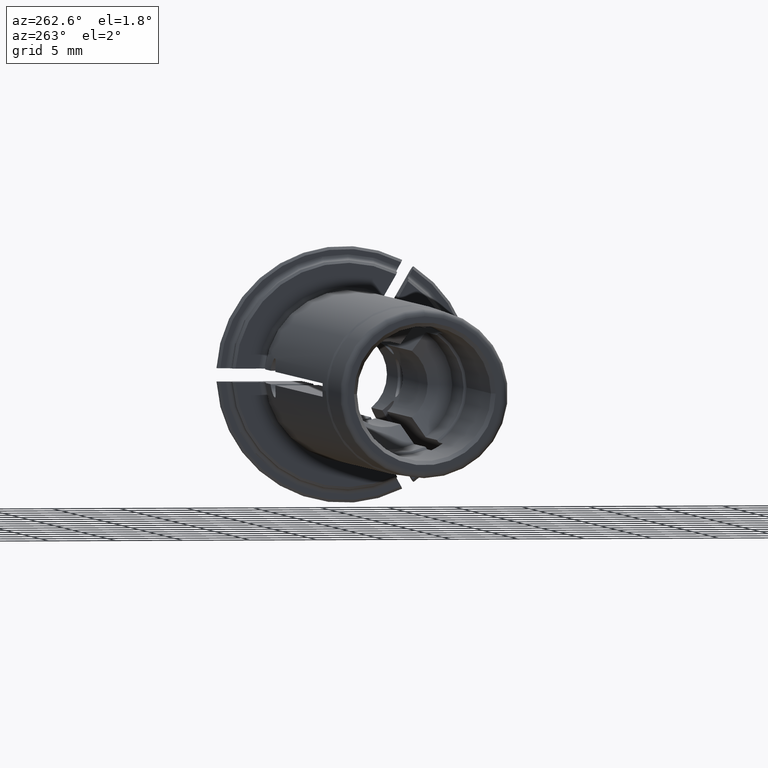
[diagram: clean part render]
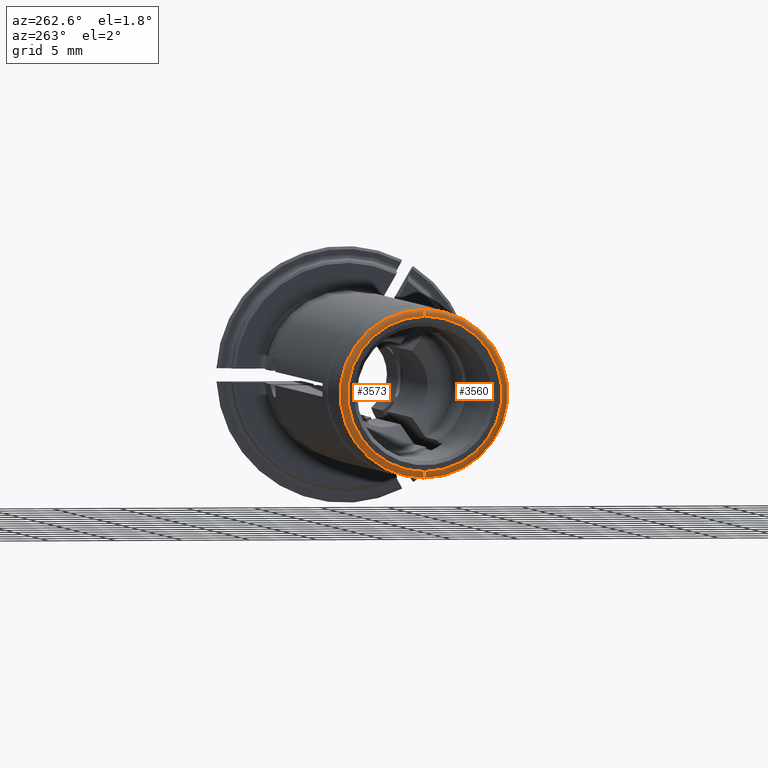
[diagram: same view with one multi-face feature highlighted, each face labeled with its STEP entity id]
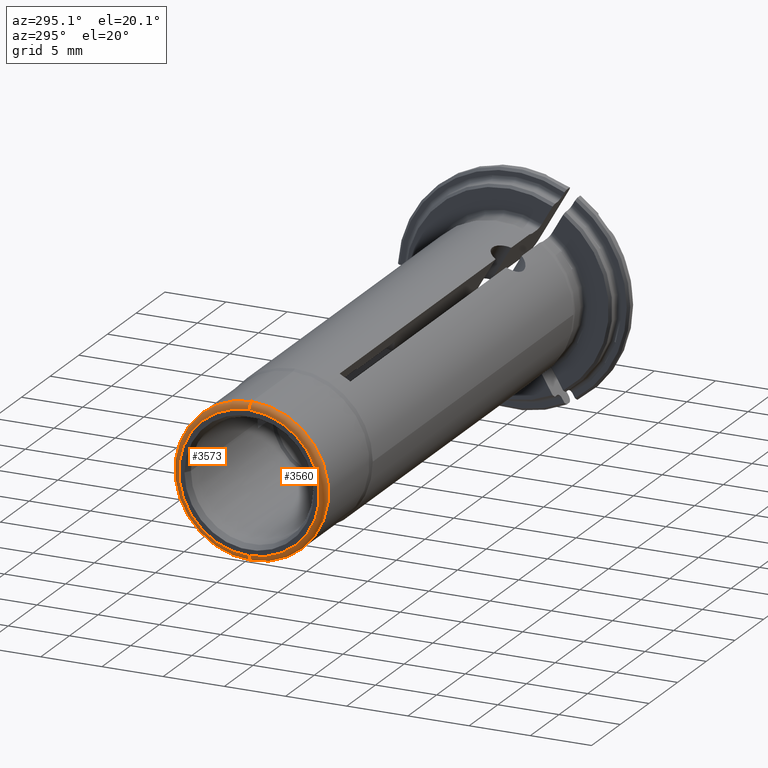
[diagram: same view with one multi-face feature highlighted, each face labeled with its STEP entity id]
A machine part, auxiliary view. The highlighted faces form ONE feature: a constant-radius fillet chain: 2 tangent blend faces with common blend radius 0.5 mm. The faces share edges in the B-rep.
A second angle (auxiliary view) of the same feature is appended — it is thin or edge-on in the first view.
Their STEP definitions:
[1] entity #3560 (Torus):
#1651=CARTESIAN_POINT('',(-4.5E1,0.E0,0.E0));
#1652=DIRECTION('',(-1.E0,0.E0,0.E0));
#1653=DIRECTION('',(0.E0,0.E0,-1.E0));
#1654=AXIS2_PLACEMENT_3D('',#1651,#1652,#1653);
#1665=CARTESIAN_POINT('',(-4.45E1,0.E0,-5.75E0));
#1666=DIRECTION('',(0.E0,-1.E0,0.E0));
#1667=DIRECTION('',(-1.E0,0.E0,0.E0));
#1668=AXIS2_PLACEMENT_3D('',#1665,#1666,#1667);
#1670=CARTESIAN_POINT('',(-4.45E1,0.E0,5.75E0));
#1671=DIRECTION('',(0.E0,1.E0,0.E0));
#1672=DIRECTION('',(-1.E0,0.E0,0.E0));
#1673=AXIS2_PLACEMENT_3D('',#1670,#1671,#1672);
#1680=CARTESIAN_POINT('',(-4.45E1,0.E0,0.E0));
#1681=DIRECTION('',(-1.E0,0.E0,0.E0));
#1682=DIRECTION('',(0.E0,0.E0,-1.E0));
#1683=AXIS2_PLACEMENT_3D('',#1680,#1681,#1682);
#2033=CARTESIAN_POINT('',(-4.5E1,0.E0,-5.75E0));
#2034=CARTESIAN_POINT('',(-4.5E1,0.E0,5.75E0));
#2035=VERTEX_POINT('',#2033);
#2036=VERTEX_POINT('',#2034);
#2037=CARTESIAN_POINT('',(-4.45E1,0.E0,-6.25E0));
#2038=CARTESIAN_POINT('',(-4.45E1,0.E0,6.25E0));
#2039=VERTEX_POINT('',#2037);
#2040=VERTEX_POINT('',#2038);
#3546=CARTESIAN_POINT('',(-4.45E1,0.E0,0.E0));
#3547=DIRECTION('',(1.E0,0.E0,0.E0));
#3548=DIRECTION('',(0.E0,1.892179922310E-2,-9.998209667306E-1));
#3549=AXIS2_PLACEMENT_3D('',#3546,#3547,#3548);
#3550=TOROIDAL_SURFACE('',#3549,5.75E0,5.E-1);
#3551=ORIENTED_EDGE('',*,*,#3522,.T.);
#3553=ORIENTED_EDGE('',*,*,#3552,.T.);
#3555=ORIENTED_EDGE('',*,*,#3554,.F.);
#3557=ORIENTED_EDGE('',*,*,#3556,.F.);
#3558=EDGE_LOOP('',(#3551,#3553,#3555,#3557));
#3559=FACE_OUTER_BOUND('',#3558,.F.);
#3560=ADVANCED_FACE('',(#3559),#3550,.T.);
#1655=CIRCLE('',#1654,5.75E0);
#1669=CIRCLE('',#1668,5.E-1);
#1674=CIRCLE('',#1673,5.E-1);
#1684=CIRCLE('',#1683,6.25E0);
#3522=EDGE_CURVE('',#2035,#2036,#1655,.T.);
#3552=EDGE_CURVE('',#2036,#2040,#1674,.T.);
#3554=EDGE_CURVE('',#2039,#2040,#1684,.T.);
#3556=EDGE_CURVE('',#2035,#2039,#1669,.T.);
[2] entity #3573 (Torus):
#1656=CARTESIAN_POINT('',(-4.5E1,0.E0,0.E0));
#1657=DIRECTION('',(-1.E0,0.E0,0.E0));
#1658=DIRECTION('',(0.E0,0.E0,1.E0));
#1659=AXIS2_PLACEMENT_3D('',#1656,#1657,#1658);
#1665=CARTESIAN_POINT('',(-4.45E1,0.E0,-5.75E0));
#1666=DIRECTION('',(0.E0,-1.E0,0.E0));
#1667=DIRECTION('',(-1.E0,0.E0,0.E0));
#1668=AXIS2_PLACEMENT_3D('',#1665,#1666,#1667);
#1670=CARTESIAN_POINT('',(-4.45E1,0.E0,5.75E0));
#1671=DIRECTION('',(0.E0,1.E0,0.E0));
#1672=DIRECTION('',(-1.E0,0.E0,0.E0));
#1673=AXIS2_PLACEMENT_3D('',#1670,#1671,#1672);
#1675=CARTESIAN_POINT('',(-4.45E1,0.E0,0.E0));
#1676=DIRECTION('',(-1.E0,0.E0,0.E0));
#1677=DIRECTION('',(0.E0,0.E0,1.E0));
#1678=AXIS2_PLACEMENT_3D('',#1675,#1676,#1677);
#2033=CARTESIAN_POINT('',(-4.5E1,0.E0,-5.75E0));
#2034=CARTESIAN_POINT('',(-4.5E1,0.E0,5.75E0));
#2035=VERTEX_POINT('',#2033);
#2036=VERTEX_POINT('',#2034);
#2037=CARTESIAN_POINT('',(-4.45E1,0.E0,-6.25E0));
#2038=CARTESIAN_POINT('',(-4.45E1,0.E0,6.25E0));
#2039=VERTEX_POINT('',#2037);
#2040=VERTEX_POINT('',#2038);
#3561=CARTESIAN_POINT('',(-4.45E1,0.E0,0.E0));
#3562=DIRECTION('',(1.E0,0.E0,0.E0));
#3563=DIRECTION('',(0.E0,-1.892179922310E-2,9.998209667306E-1));
#3564=AXIS2_PLACEMENT_3D('',#3561,#3562,#3563);
#3565=TOROIDAL_SURFACE('',#3564,5.75E0,5.E-1);
#3566=ORIENTED_EDGE('',*,*,#3524,.T.);
#3567=ORIENTED_EDGE('',*,*,#3556,.T.);
#3569=ORIENTED_EDGE('',*,*,#3568,.F.);
#3570=ORIENTED_EDGE('',*,*,#3552,.F.);
#3571=EDGE_LOOP('',(#3566,#3567,#3569,#3570));
#3572=FACE_OUTER_BOUND('',#3571,.F.);
#3573=ADVANCED_FACE('',(#3572),#3565,.T.);
#1660=CIRCLE('',#1659,5.75E0);
#1669=CIRCLE('',#1668,5.E-1);
#1674=CIRCLE('',#1673,5.E-1);
#1679=CIRCLE('',#1678,6.25E0);
#3524=EDGE_CURVE('',#2036,#2035,#1660,.T.);
#3552=EDGE_CURVE('',#2036,#2040,#1674,.T.);
#3556=EDGE_CURVE('',#2035,#2039,#1669,.T.);
#3568=EDGE_CURVE('',#2040,#2039,#1679,.T.);